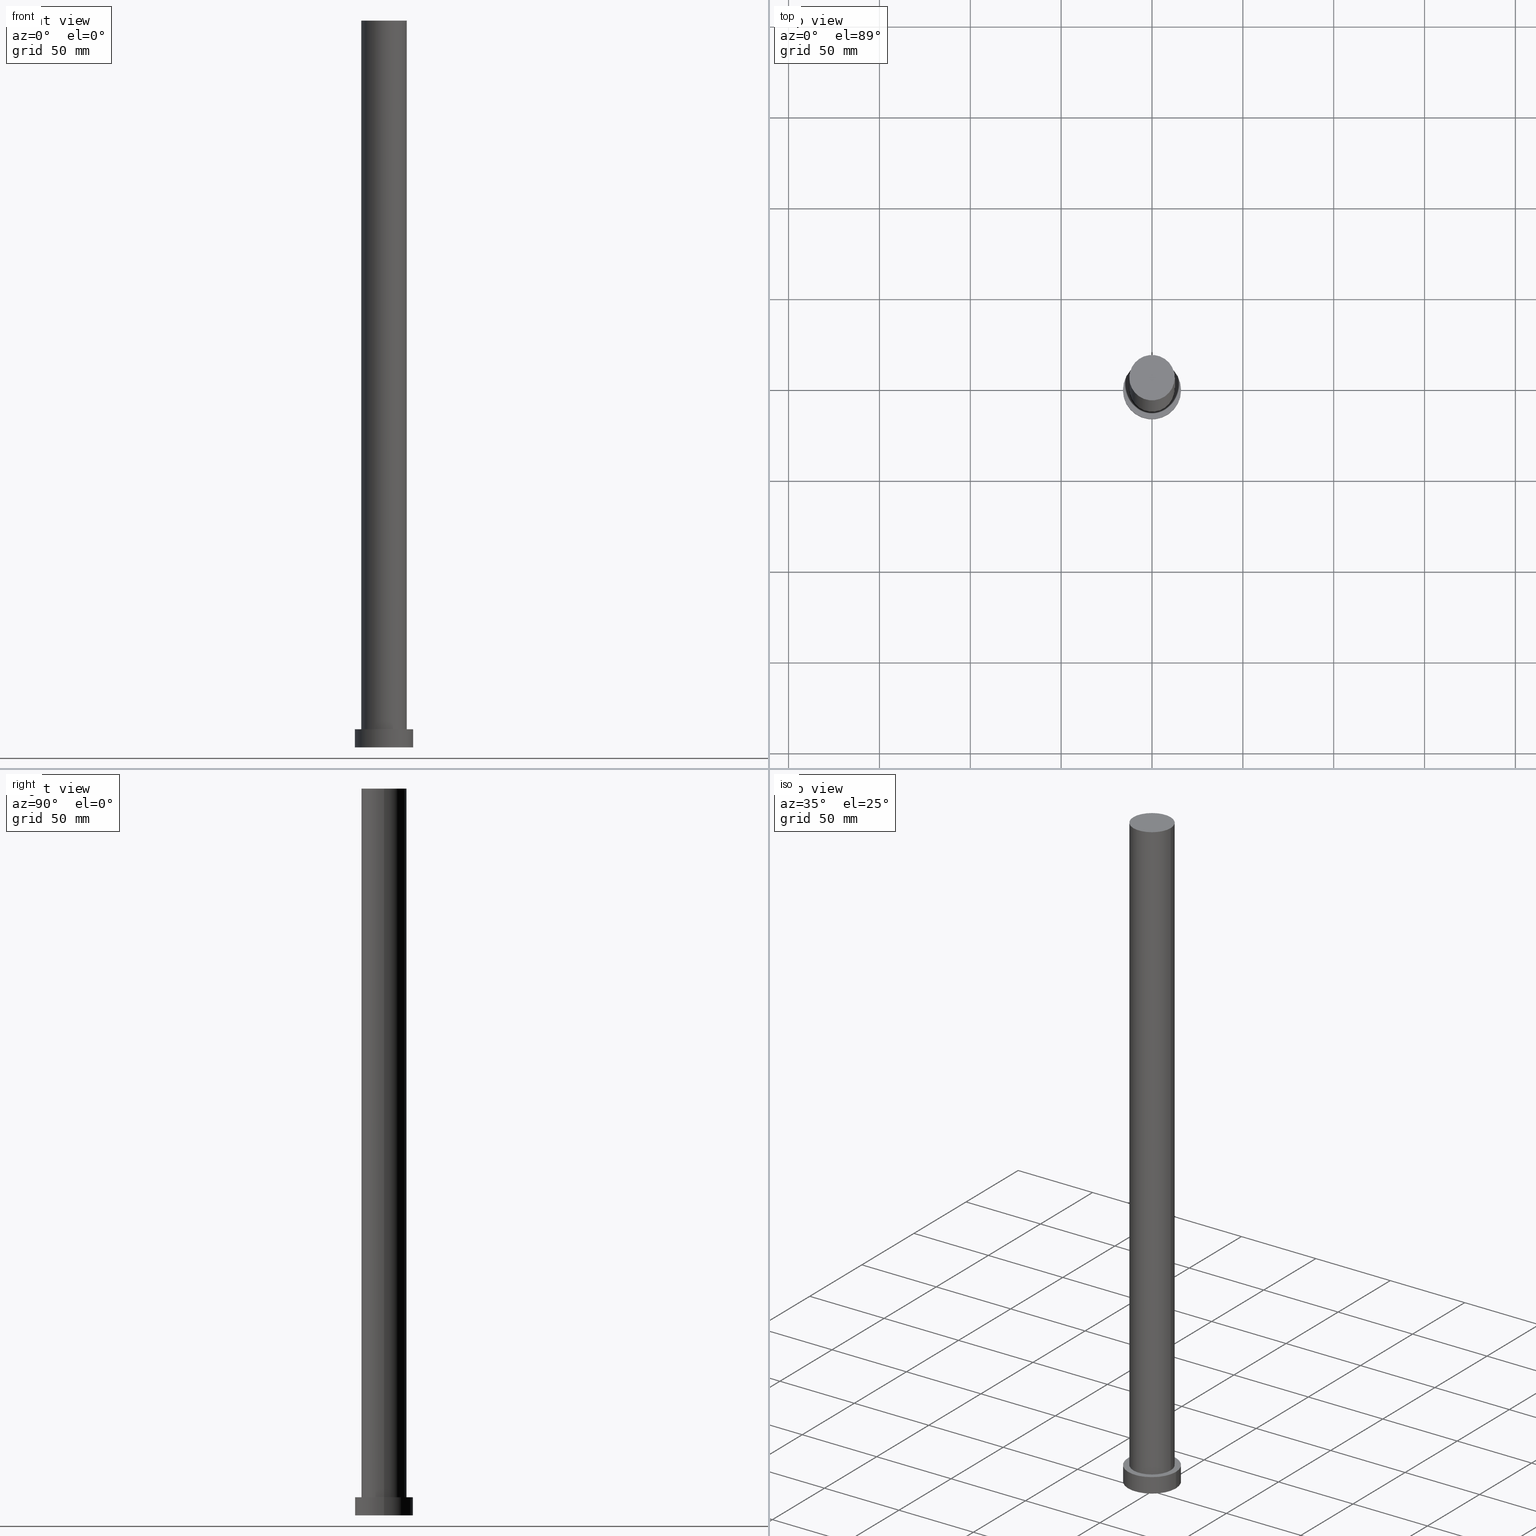
[diagram: canonical four-view strip — front | top / right | iso, engineering-drawing reading convention]
A machine part, canonical four-view strip (front | top / right | iso — engineering-drawing reading convention). The complete STEP part file that produces these views, byte-faithful:
ISO-10303-21;
HEADER;
FILE_DESCRIPTION (( 'STEP AP203' ),
    '1' );
FILE_NAME ('eb87.STEP',
    '2023-02-13T07:47:26',
    ( '' ),
    ( '' ),
    'SwSTEP 2.0',
    'SolidWorks 2019',
    '' );
FILE_SCHEMA (( 'CONFIG_CONTROL_DESIGN' ));
ENDSEC;

DATA;
#1 = PERSON_AND_ORGANIZATION ( #183, #184 ) ;
#2 = DIRECTION ( 'NONE',  ( 0.000000000000000000, 0.000000000000000000, 1.000000000000000000 ) ) ;
#3 =( NAMED_UNIT ( * ) SI_UNIT ( $, .STERADIAN. ) SOLID_ANGLE_UNIT ( ) );
#4 = LOCAL_TIME ( 8, 47, 26.00000000000000000, #79 ) ;
#5 = APPROVAL_STATUS ( 'not_yet_approved' ) ;
#6 = CARTESIAN_POINT ( 'NONE',  ( -16.00000000000000000, 0.000000000000000000, 10.00000000000000000 ) ) ;
#7 = ADVANCED_FACE ( 'NONE', ( #113 ), #131, .F. ) ;
#8 = LOCAL_TIME ( 8, 47, 26.00000000000000000, #159 ) ;
#9 = CARTESIAN_POINT ( 'NONE',  ( 0.000000000000000000, 0.000000000000000000, 0.000000000000000000 ) ) ;
#10 = AXIS2_PLACEMENT_3D ( 'NONE', #115, #190, #95 ) ;
#11 = CARTESIAN_POINT ( 'NONE',  ( -16.00000000000000000, 0.000000000000000000, 0.000000000000000000 ) ) ;
#12 = CARTESIAN_POINT ( 'NONE',  ( 0.000000000000000000, 0.000000000000000000, 10.00000000000000000 ) ) ;
#13 = VERTEX_POINT ( 'NONE', #108 ) ;
#14 = DIRECTION ( 'NONE',  ( 0.000000000000000000, 0.000000000000000000, 1.000000000000000000 ) ) ;
#15 = CC_DESIGN_APPROVAL ( #129, ( #41 ) ) ;
#16 = CARTESIAN_POINT ( 'NONE',  ( 16.00000000000000000, 1.959434878635765131E-15, 0.000000000000000000 ) ) ;
#17 = APPROVAL_DATE_TIME ( #101, #129 ) ;
#18 = DIRECTION ( 'NONE',  ( -0.000000000000000000, -0.000000000000000000, -1.000000000000000000 ) ) ;
#19 = PERSON_AND_ORGANIZATION ( #183, #184 ) ;
#20 = AXIS2_PLACEMENT_3D ( 'NONE', #57, #137, #210 ) ;
#21 = EDGE_CURVE ( 'NONE', #167, #217, #163, .T. ) ;
#22 = AXIS2_PLACEMENT_3D ( 'NONE', #128, #140, #30 ) ;
#23 = ORIENTED_EDGE ( 'NONE', *, *, #21, .F. ) ;
#24 = APPROVAL ( #5, 'NEUR�EN�' ) ;
#25 = ORIENTED_EDGE ( 'NONE', *, *, #105, .F. ) ;
#26 = ADVANCED_FACE ( 'NONE', ( #211 ), #58, .T. ) ;
#27 = APPROVAL_DATE_TIME ( #51, #96 ) ;
#28 = CARTESIAN_POINT ( 'NONE',  ( 12.50000000000000000, 1.530808498934191521E-15, 10.00000000000000000 ) ) ;
#29 = EDGE_LOOP ( 'NONE', ( #25, #126 ) ) ;
#30 = DIRECTION ( 'NONE',  ( 1.000000000000000000, 0.000000000000000000, 0.000000000000000000 ) ) ;
#31 = EDGE_CURVE ( 'NONE', #13, #69, #90, .T. ) ;
#32 = DIRECTION ( 'NONE',  ( -0.000000000000000000, -0.000000000000000000, -1.000000000000000000 ) ) ;
#33 = ORIENTED_EDGE ( 'NONE', *, *, #189, .T. ) ;
#34 = CYLINDRICAL_SURFACE ( 'NONE', #86, 12.50000000000000000 ) ;
#35 = CARTESIAN_POINT ( 'NONE',  ( 0.000000000000000000, 0.000000000000000000, 10.00000000000000000 ) ) ;
#36 = DATE_AND_TIME ( #40, #94 ) ;
#37 = CYLINDRICAL_SURFACE ( 'NONE', #153, 12.50000000000000000 ) ;
#38 = ADVANCED_BREP_SHAPE_REPRESENTATION ( 'eb87', ( #224, #241 ), #107 ) ;
#39 = EDGE_CURVE ( 'NONE', #238, #249, #68, .T. ) ;
#40 = CALENDAR_DATE ( 2023, 13, 2 ) ;
#41 = PRODUCT_DEFINITION_FORMATION_WITH_SPECIFIED_SOURCE ( 'LIBOVOLN�', '', #112, .NOT_KNOWN. ) ;
#42 = VECTOR ( 'NONE', #164, 1000.000000000000000 ) ;
#43 = EDGE_CURVE ( 'NONE', #238, #167, #232, .T. ) ;
#44 = EDGE_LOOP ( 'NONE', ( #247, #150, #242, #221 ) ) ;
#45 = VERTEX_POINT ( 'NONE', #11 ) ;
#46 =( LENGTH_UNIT ( ) NAMED_UNIT ( * ) SI_UNIT ( .MILLI., .METRE. ) );
#47 = VECTOR ( 'NONE', #208, 1000.000000000000000 ) ;
#48 = ORIENTED_EDGE ( 'NONE', *, *, #245, .T. ) ;
#49 = CYLINDRICAL_SURFACE ( 'NONE', #102, 16.00000000000000000 ) ;
#50 = CIRCLE ( 'NONE', #104, 16.00000000000000000 ) ;
#51 = DATE_AND_TIME ( #168, #100 ) ;
#52 = CARTESIAN_POINT ( 'NONE',  ( 0.000000000000000000, 0.000000000000000000, 400.0000000000000000 ) ) ;
#53 = VECTOR ( 'NONE', #60, 1000.000000000000000 ) ;
#54 = ADVANCED_FACE ( 'NONE', ( #75 ), #49, .T. ) ;
#55 = CARTESIAN_POINT ( 'NONE',  ( 0.000000000000000000, 0.000000000000000000, 400.0000000000000000 ) ) ;
#56 = EDGE_LOOP ( 'NONE', ( #74, #231, #133, #229 ) ) ;
#57 = CARTESIAN_POINT ( 'NONE',  ( 0.000000000000000000, 0.000000000000000000, 10.00000000000000000 ) ) ;
#58 = PLANE ( 'NONE',  #114 ) ;
#59 = PERSON_AND_ORGANIZATION_ROLE ( 'creator' ) ;
#60 = DIRECTION ( 'NONE',  ( -0.000000000000000000, -0.000000000000000000, -1.000000000000000000 ) ) ;
#61 = CALENDAR_DATE ( 2023, 13, 2 ) ;
#62 = PERSON_AND_ORGANIZATION_ROLE ( 'design_owner' ) ;
#63 = CARTESIAN_POINT ( 'NONE',  ( -12.50000000000000000, 0.000000000000000000, 400.0000000000000000 ) ) ;
#64 = AXIS2_PLACEMENT_3D ( 'NONE', #9, #204, #88 ) ;
#65 = AXIS2_PLACEMENT_3D ( 'NONE', #12, #106, #226 ) ;
#66 = APPROVAL_ROLE ( '' ) ;
#67 = CC_DESIGN_PERSON_AND_ORGANIZATION_ASSIGNMENT ( #97, #162, ( #41 ) ) ;
#68 = CIRCLE ( 'NONE', #218, 12.50000000000000000 ) ;
#69 = VERTEX_POINT ( 'NONE', #16 ) ;
#70 = EDGE_CURVE ( 'NONE', #217, #167, #71, .T. ) ;
#71 = CIRCLE ( 'NONE', #22, 12.50000000000000000 ) ;
#72 = EDGE_LOOP ( 'NONE', ( #199, #160, #201, #147 ) ) ;
#73 = CARTESIAN_POINT ( 'NONE',  ( 0.000000000000000000, 0.000000000000000000, 10.00000000000000000 ) ) ;
#74 = ORIENTED_EDGE ( 'NONE', *, *, #116, .F. ) ;
#75 = FACE_OUTER_BOUND ( 'NONE', #56, .T. ) ;
#76 = ORIENTED_EDGE ( 'NONE', *, *, #70, .T. ) ;
#77 = CARTESIAN_POINT ( 'NONE',  ( 0.000000000000000000, 0.000000000000000000, 0.000000000000000000 ) ) ;
#78 = DIRECTION ( 'NONE',  ( 1.000000000000000000, 0.000000000000000000, -0.000000000000000000 ) ) ;
#79 = COORDINATED_UNIVERSAL_TIME_OFFSET ( 1, 0, .AHEAD. ) ;
#80 = DIRECTION ( 'NONE',  ( -1.000000000000000000, 0.000000000000000000, 0.000000000000000000 ) ) ;
#81 = PERSON_AND_ORGANIZATION ( #183, #184 ) ;
#82 = DATE_TIME_ROLE ( 'creation_date' ) ;
#83 = PERSON_AND_ORGANIZATION ( #183, #184 ) ;
#84 = DATE_TIME_ROLE ( 'classification_date' ) ;
#85 = PRODUCT_DEFINITION ( 'NEZN�M�', '', #41, #200 ) ;
#86 = AXIS2_PLACEMENT_3D ( 'NONE', #55, #119, #151 ) ;
#87 = APPLICATION_CONTEXT ( 'configuration controlled 3d designs of mechanical parts and assemblies' ) ;
#88 = DIRECTION ( 'NONE',  ( 1.000000000000000000, 0.000000000000000000, -0.000000000000000000 ) ) ;
#89 = APPROVAL_STATUS ( 'not_yet_approved' ) ;
#90 = LINE ( 'NONE', #155, #47 ) ;
#91 = CARTESIAN_POINT ( 'NONE',  ( 12.50000000000000000, 1.530808498934191521E-15, 400.0000000000000000 ) ) ;
#92 = CC_DESIGN_PERSON_AND_ORGANIZATION_ASSIGNMENT ( #83, #62, ( #112 ) ) ;
#93 = CARTESIAN_POINT ( 'NONE',  ( 12.50000000000000000, 1.530808498934191521E-15, 400.0000000000000000 ) ) ;
#94 = LOCAL_TIME ( 8, 47, 26.00000000000000000, #213 ) ;
#95 = DIRECTION ( 'NONE',  ( 1.000000000000000000, 0.000000000000000000, -0.000000000000000000 ) ) ;
#96 = APPROVAL ( #89, 'NEUR�EN�' ) ;
#97 = PERSON_AND_ORGANIZATION ( #183, #184 ) ;
#98 = CARTESIAN_POINT ( 'NONE',  ( -12.50000000000000000, 0.000000000000000000, 10.00000000000000000 ) ) ;
#99 = CIRCLE ( 'NONE', #243, 16.00000000000000000 ) ;
#100 = LOCAL_TIME ( 8, 47, 26.00000000000000000, #186 ) ;
#101 = DATE_AND_TIME ( #176, #4 ) ;
#102 = AXIS2_PLACEMENT_3D ( 'NONE', #132, #177, #152 ) ;
#103 = ORIENTED_EDGE ( 'NONE', *, *, #195, .T. ) ;
#104 = AXIS2_PLACEMENT_3D ( 'NONE', #187, #14, #255 ) ;
#105 = EDGE_CURVE ( 'NONE', #45, #69, #99, .T. ) ;
#106 = DIRECTION ( 'NONE',  ( 0.000000000000000000, 0.000000000000000000, 1.000000000000000000 ) ) ;
#107 =( GEOMETRIC_REPRESENTATION_CONTEXT ( 3 ) GLOBAL_UNCERTAINTY_ASSIGNED_CONTEXT ( ( #220 ) ) GLOBAL_UNIT_ASSIGNED_CONTEXT ( ( #46, #166, #3 ) ) REPRESENTATION_CONTEXT ( 'NONE', 'WORKASPACE' ) );
#108 = CARTESIAN_POINT ( 'NONE',  ( 16.00000000000000000, 1.959434878635765131E-15, 10.00000000000000000 ) ) ;
#109 = CARTESIAN_POINT ( 'NONE',  ( -16.00000000000000000, 0.000000000000000000, 10.00000000000000000 ) ) ;
#110 = VERTEX_POINT ( 'NONE', #109 ) ;
#111 = DIRECTION ( 'NONE',  ( -0.000000000000000000, -0.000000000000000000, -1.000000000000000000 ) ) ;
#112 = PRODUCT ( 'eb87', 'eb87', '', ( #193 ) ) ;
#113 = FACE_OUTER_BOUND ( 'NONE', #29, .T. ) ;
#114 = AXIS2_PLACEMENT_3D ( 'NONE', #138, #2, #78 ) ;
#115 = CARTESIAN_POINT ( 'NONE',  ( 0.000000000000000000, 0.000000000000000000, 10.00000000000000000 ) ) ;
#116 = EDGE_CURVE ( 'NONE', #13, #110, #130, .T. ) ;
#117 = DIRECTION ( 'NONE',  ( 0.000000000000000000, 0.000000000000000000, 1.000000000000000000 ) ) ;
#118 = PERSON_AND_ORGANIZATION ( #183, #184 ) ;
#119 = DIRECTION ( 'NONE',  ( -0.000000000000000000, -0.000000000000000000, -1.000000000000000000 ) ) ;
#120 = DIRECTION ( 'NONE',  ( 1.000000000000000000, 0.000000000000000000, 0.000000000000000000 ) ) ;
#121 = PERSON_AND_ORGANIZATION ( #183, #184 ) ;
#122 = CC_DESIGN_SECURITY_CLASSIFICATION ( #145, ( #41 ) ) ;
#123 = APPROVAL_DATE_TIME ( #36, #24 ) ;
#124 = AXIS2_PLACEMENT_3D ( 'NONE', #35, #117, #233 ) ;
#125 = APPROVAL_PERSON_ORGANIZATION ( #118, #129, #191 ) ;
#126 = ORIENTED_EDGE ( 'NONE', *, *, #136, .F. ) ;
#127 = ADVANCED_FACE ( 'NONE', ( #202 ), #34, .T. ) ;
#128 = CARTESIAN_POINT ( 'NONE',  ( 0.000000000000000000, 0.000000000000000000, 10.00000000000000000 ) ) ;
#129 = APPROVAL ( #161, 'NEUR�EN�' ) ;
#130 = CIRCLE ( 'NONE', #20, 16.00000000000000000 ) ;
#131 = PLANE ( 'NONE',  #64 ) ;
#132 = CARTESIAN_POINT ( 'NONE',  ( 0.000000000000000000, 0.000000000000000000, 10.00000000000000000 ) ) ;
#133 = ORIENTED_EDGE ( 'NONE', *, *, #136, .T. ) ;
#134 = FACE_OUTER_BOUND ( 'NONE', #209, .T. ) ;
#135 = EDGE_LOOP ( 'NONE', ( #240, #215, #103, #76 ) ) ;
#136 = EDGE_CURVE ( 'NONE', #69, #45, #50, .T. ) ;
#137 = DIRECTION ( 'NONE',  ( 0.000000000000000000, 0.000000000000000000, 1.000000000000000000 ) ) ;
#138 = CARTESIAN_POINT ( 'NONE',  ( 0.000000000000000000, 0.000000000000000000, 400.0000000000000000 ) ) ;
#139 = DATE_AND_TIME ( #143, #158 ) ;
#140 = DIRECTION ( 'NONE',  ( 0.000000000000000000, 0.000000000000000000, 1.000000000000000000 ) ) ;
#141 = DATE_AND_TIME ( #61, #8 ) ;
#142 = DIRECTION ( 'NONE',  ( 0.000000000000000000, 0.000000000000000000, 1.000000000000000000 ) ) ;
#143 = CALENDAR_DATE ( 2023, 13, 2 ) ;
#144 = ADVANCED_FACE ( 'NONE', ( #188, #134 ), #173, .T. ) ;
#145 = SECURITY_CLASSIFICATION ( '', '', #157 ) ;
#146 = ADVANCED_FACE ( 'NONE', ( #175 ), #156, .T. ) ;
#147 = ORIENTED_EDGE ( 'NONE', *, *, #195, .F. ) ;
#148 = ORIENTED_EDGE ( 'NONE', *, *, #70, .F. ) ;
#149 = CC_DESIGN_DATE_AND_TIME_ASSIGNMENT ( #141, #84, ( #145 ) ) ;
#150 = ORIENTED_EDGE ( 'NONE', *, *, #189, .F. ) ;
#151 = DIRECTION ( 'NONE',  ( -1.000000000000000000, 0.000000000000000000, 0.000000000000000000 ) ) ;
#152 = DIRECTION ( 'NONE',  ( -1.000000000000000000, 0.000000000000000000, 0.000000000000000000 ) ) ;
#153 = AXIS2_PLACEMENT_3D ( 'NONE', #192, #18, #206 ) ;
#154 = CC_DESIGN_PERSON_AND_ORGANIZATION_ASSIGNMENT ( #1, #178, ( #41 ) ) ;
#155 = CARTESIAN_POINT ( 'NONE',  ( 16.00000000000000000, 1.959434878635765131E-15, 10.00000000000000000 ) ) ;
#156 = CYLINDRICAL_SURFACE ( 'NONE', #172, 16.00000000000000000 ) ;
#157 = SECURITY_CLASSIFICATION_LEVEL ( 'unclassified' ) ;
#158 = LOCAL_TIME ( 8, 47, 26.00000000000000000, #174 ) ;
#159 = COORDINATED_UNIVERSAL_TIME_OFFSET ( 1, 0, .AHEAD. ) ;
#160 = ORIENTED_EDGE ( 'NONE', *, *, #43, .T. ) ;
#161 = APPROVAL_STATUS ( 'not_yet_approved' ) ;
#162 = PERSON_AND_ORGANIZATION_ROLE ( 'creator' ) ;
#163 = CIRCLE ( 'NONE', #124, 12.50000000000000000 ) ;
#164 = DIRECTION ( 'NONE',  ( -0.000000000000000000, -0.000000000000000000, -1.000000000000000000 ) ) ;
#165 = CC_DESIGN_APPROVAL ( #96, ( #145 ) ) ;
#166 =( NAMED_UNIT ( * ) PLANE_ANGLE_UNIT ( ) SI_UNIT ( $, .RADIAN. ) );
#167 = VERTEX_POINT ( 'NONE', #28 ) ;
#168 = CALENDAR_DATE ( 2023, 13, 2 ) ;
#169 = DIRECTION ( 'NONE',  ( 0.000000000000000000, 0.000000000000000000, 1.000000000000000000 ) ) ;
#170 = PRODUCT_DEFINITION_SHAPE ( 'NONE', 'NONE',  #85 ) ;
#171 = CARTESIAN_POINT ( 'NONE',  ( 0.000000000000000000, 0.000000000000000000, 400.0000000000000000 ) ) ;
#172 = AXIS2_PLACEMENT_3D ( 'NONE', #73, #32, #80 ) ;
#173 = PLANE ( 'NONE',  #10 ) ;
#174 = COORDINATED_UNIVERSAL_TIME_OFFSET ( 1, 0, .AHEAD. ) ;
#175 = FACE_OUTER_BOUND ( 'NONE', #44, .T. ) ;
#176 = CALENDAR_DATE ( 2023, 13, 2 ) ;
#177 = DIRECTION ( 'NONE',  ( -0.000000000000000000, -0.000000000000000000, -1.000000000000000000 ) ) ;
#178 = PERSON_AND_ORGANIZATION_ROLE ( 'design_supplier' ) ;
#179 = PRODUCT_RELATED_PRODUCT_CATEGORY ( 'detail', '', ( #112 ) ) ;
#180 = APPLICATION_PROTOCOL_DEFINITION ( 'international standard', 'config_control_design', 1994, #216 ) ;
#181 = CLOSED_SHELL ( 'NONE', ( #127, #54, #146, #144, #7, #198, #26 ) ) ;
#182 = CC_DESIGN_PERSON_AND_ORGANIZATION_ASSIGNMENT ( #19, #236, ( #145 ) ) ;
#183 = PERSON ( 'NEUR�EN�', 'NEUR�EN�', 'NEUR�EN�', ('NEUR�EN�'), ('NEUR�EN�'), ('NEUR�EN�') ) ;
#184 = ORGANIZATION ( 'NEUR�EN�', 'NEUR�EN�', '' ) ;
#185 = FACE_OUTER_BOUND ( 'NONE', #135, .T. ) ;
#186 = COORDINATED_UNIVERSAL_TIME_OFFSET ( 1, 0, .AHEAD. ) ;
#187 = CARTESIAN_POINT ( 'NONE',  ( 0.000000000000000000, 0.000000000000000000, 0.000000000000000000 ) ) ;
#188 = FACE_BOUND ( 'NONE', #227, .T. ) ;
#189 = EDGE_CURVE ( 'NONE', #110, #13, #254, .T. ) ;
#190 = DIRECTION ( 'NONE',  ( 0.000000000000000000, 0.000000000000000000, 1.000000000000000000 ) ) ;
#191 = APPROVAL_ROLE ( '' ) ;
#192 = CARTESIAN_POINT ( 'NONE',  ( 0.000000000000000000, 0.000000000000000000, 400.0000000000000000 ) ) ;
#193 = MECHANICAL_CONTEXT ( 'NONE', #87, 'mechanical' ) ;
#194 = CARTESIAN_POINT ( 'NONE',  ( 0.000000000000000000, 0.000000000000000000, 0.000000000000000000 ) ) ;
#195 = EDGE_CURVE ( 'NONE', #249, #217, #235, .T. ) ;
#196 = CC_DESIGN_PERSON_AND_ORGANIZATION_ASSIGNMENT ( #121, #59, ( #85 ) ) ;
#197 = DIRECTION ( 'NONE',  ( 1.000000000000000000, 0.000000000000000000, 0.000000000000000000 ) ) ;
#198 = ADVANCED_FACE ( 'NONE', ( #185 ), #37, .T. ) ;
#199 = ORIENTED_EDGE ( 'NONE', *, *, #39, .F. ) ;
#200 = DESIGN_CONTEXT ( 'detailed design', #216, 'design' ) ;
#201 = ORIENTED_EDGE ( 'NONE', *, *, #21, .T. ) ;
#202 = FACE_OUTER_BOUND ( 'NONE', #72, .T. ) ;
#203 = VECTOR ( 'NONE', #111, 1000.000000000000000 ) ;
#204 = DIRECTION ( 'NONE',  ( 0.000000000000000000, 0.000000000000000000, 1.000000000000000000 ) ) ;
#205 = CC_DESIGN_APPROVAL ( #24, ( #85 ) ) ;
#206 = DIRECTION ( 'NONE',  ( -1.000000000000000000, 0.000000000000000000, 0.000000000000000000 ) ) ;
#207 = ORIENTED_EDGE ( 'NONE', *, *, #39, .T. ) ;
#208 = DIRECTION ( 'NONE',  ( -0.000000000000000000, -0.000000000000000000, -1.000000000000000000 ) ) ;
#209 = EDGE_LOOP ( 'NONE', ( #33, #246 ) ) ;
#210 = DIRECTION ( 'NONE',  ( 1.000000000000000000, 0.000000000000000000, 0.000000000000000000 ) ) ;
#211 = FACE_OUTER_BOUND ( 'NONE', #252, .T. ) ;
#212 = CARTESIAN_POINT ( 'NONE',  ( -12.50000000000000000, 0.000000000000000000, 400.0000000000000000 ) ) ;
#213 = COORDINATED_UNIVERSAL_TIME_OFFSET ( 1, 0, .AHEAD. ) ;
#214 = AXIS2_PLACEMENT_3D ( 'NONE', #171, #253, #197 ) ;
#215 = ORIENTED_EDGE ( 'NONE', *, *, #245, .F. ) ;
#216 = APPLICATION_CONTEXT ( 'configuration controlled 3d designs of mechanical parts and assemblies' ) ;
#217 = VERTEX_POINT ( 'NONE', #98 ) ;
#218 = AXIS2_PLACEMENT_3D ( 'NONE', #52, #169, #223 ) ;
#219 = CIRCLE ( 'NONE', #214, 12.50000000000000000 ) ;
#220 = UNCERTAINTY_MEASURE_WITH_UNIT (LENGTH_MEASURE( 1.000000000000000082E-05 ), #46, 'distance_accuracy_value', 'NONE');
#221 = ORIENTED_EDGE ( 'NONE', *, *, #105, .T. ) ;
#222 = PERSON_AND_ORGANIZATION ( #183, #184 ) ;
#223 = DIRECTION ( 'NONE',  ( 1.000000000000000000, 0.000000000000000000, 0.000000000000000000 ) ) ;
#224 = MANIFOLD_SOLID_BREP ( 'P�idat vysunut�m3', #181 ) ;
#225 = APPROVAL_ROLE ( '' ) ;
#226 = DIRECTION ( 'NONE',  ( 1.000000000000000000, 0.000000000000000000, 0.000000000000000000 ) ) ;
#227 = EDGE_LOOP ( 'NONE', ( #148, #23 ) ) ;
#228 = APPROVAL_PERSON_ORGANIZATION ( #222, #96, #225 ) ;
#229 = ORIENTED_EDGE ( 'NONE', *, *, #248, .F. ) ;
#230 = DIRECTION ( 'NONE',  ( 1.000000000000000000, 0.000000000000000000, 0.000000000000000000 ) ) ;
#231 = ORIENTED_EDGE ( 'NONE', *, *, #31, .T. ) ;
#232 = LINE ( 'NONE', #93, #203 ) ;
#233 = DIRECTION ( 'NONE',  ( 1.000000000000000000, 0.000000000000000000, 0.000000000000000000 ) ) ;
#234 = CC_DESIGN_DATE_AND_TIME_ASSIGNMENT ( #139, #82, ( #85 ) ) ;
#235 = LINE ( 'NONE', #212, #53 ) ;
#236 = PERSON_AND_ORGANIZATION_ROLE ( 'classification_officer' ) ;
#237 = LINE ( 'NONE', #6, #42 ) ;
#238 = VERTEX_POINT ( 'NONE', #91 ) ;
#239 = APPLICATION_PROTOCOL_DEFINITION ( 'international standard', 'config_control_design', 1994, #87 ) ;
#240 = ORIENTED_EDGE ( 'NONE', *, *, #43, .F. ) ;
#241 = AXIS2_PLACEMENT_3D ( 'NONE', #194, #142, #120 ) ;
#242 = ORIENTED_EDGE ( 'NONE', *, *, #248, .T. ) ;
#243 = AXIS2_PLACEMENT_3D ( 'NONE', #77, #251, #230 ) ;
#244 = APPROVAL_PERSON_ORGANIZATION ( #81, #24, #66 ) ;
#245 = EDGE_CURVE ( 'NONE', #249, #238, #219, .T. ) ;
#246 = ORIENTED_EDGE ( 'NONE', *, *, #116, .T. ) ;
#247 = ORIENTED_EDGE ( 'NONE', *, *, #31, .F. ) ;
#248 = EDGE_CURVE ( 'NONE', #110, #45, #237, .T. ) ;
#249 = VERTEX_POINT ( 'NONE', #63 ) ;
#250 = SHAPE_DEFINITION_REPRESENTATION ( #170, #38 ) ;
#251 = DIRECTION ( 'NONE',  ( 0.000000000000000000, 0.000000000000000000, 1.000000000000000000 ) ) ;
#252 = EDGE_LOOP ( 'NONE', ( #48, #207 ) ) ;
#253 = DIRECTION ( 'NONE',  ( 0.000000000000000000, 0.000000000000000000, 1.000000000000000000 ) ) ;
#254 = CIRCLE ( 'NONE', #65, 16.00000000000000000 ) ;
#255 = DIRECTION ( 'NONE',  ( 1.000000000000000000, 0.000000000000000000, 0.000000000000000000 ) ) ;
ENDSEC;
END-ISO-10303-21;
